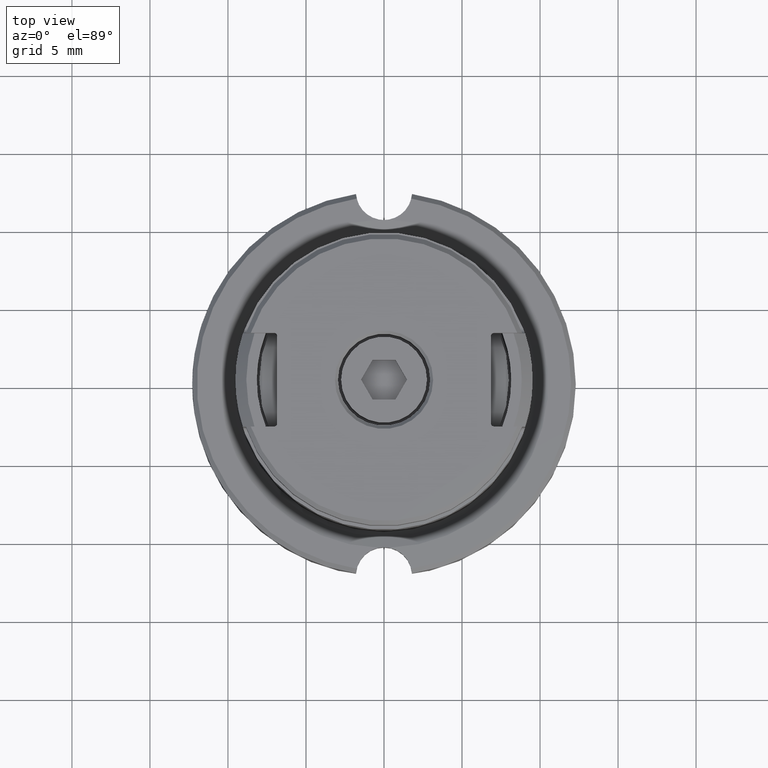
[diagram: clean part render]
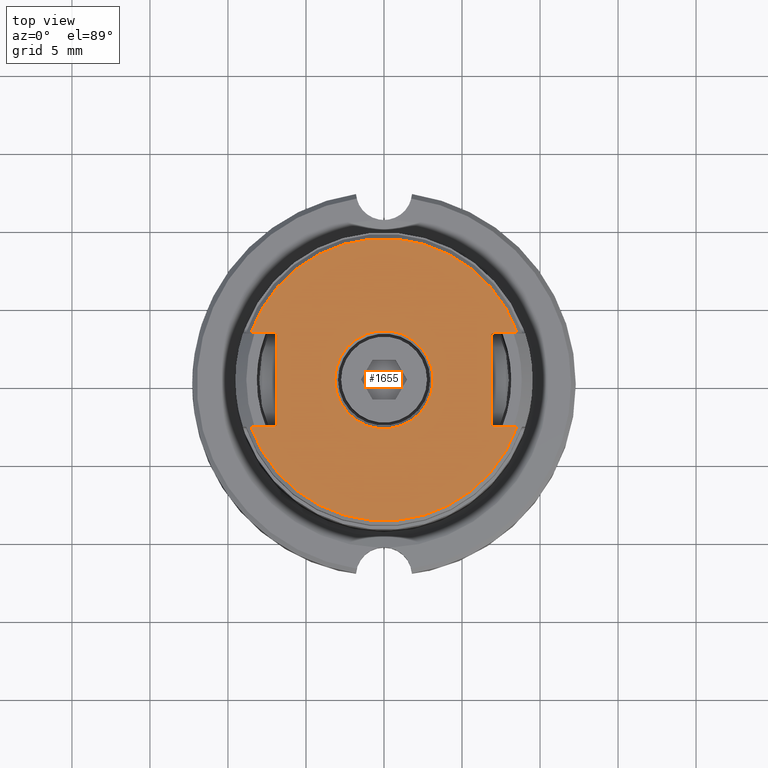
[diagram: same view with one face highlighted and labeled with its STEP entity id]
A machine part, top view. The second image highlights one B-rep face of the part: STEP entity #1655.
In plain terms, the highlighted planar face has unit normal (0, 0, 1).
Its self-contained STEP definition (entity closure, byte-faithful):
#1655=ADVANCED_FACE('',(#3096,#3097),#2452,.T.);
#2452=PLANE('',#18229);
#3096=FACE_BOUND('',#3334,.T.);
#3097=FACE_BOUND('',#3335,.T.);
#3334=EDGE_LOOP('',(#5425,#5426,#5427,#5428,#5429,#5430,#5431,#5432,#5433,
#5434,#5435,#5436));
#3335=EDGE_LOOP('',(#5437,#5438));
#4291=CIRCLE('',#18205,0.2);
#4292=CIRCLE('',#18208,0.2);
#4294=CIRCLE('',#18214,0.2);
#4295=CIRCLE('',#18217,0.2);
#4298=CIRCLE('',#18224,9.049999284139);
#4299=CIRCLE('',#18226,9.049999290481);
#4300=CIRCLE('',#18227,3.15);
#4301=CIRCLE('',#18228,3.15);
#5425=ORIENTED_EDGE('',*,*,#11744,.F.);
#5426=ORIENTED_EDGE('',*,*,#11742,.F.);
#5427=ORIENTED_EDGE('',*,*,#11772,.F.);
#5428=ORIENTED_EDGE('',*,*,#11766,.F.);
#5429=ORIENTED_EDGE('',*,*,#11764,.F.);
#5430=ORIENTED_EDGE('',*,*,#11762,.F.);
#5431=ORIENTED_EDGE('',*,*,#11760,.F.);
#5432=ORIENTED_EDGE('',*,*,#11758,.F.);
#5433=ORIENTED_EDGE('',*,*,#11773,.F.);
#5434=ORIENTED_EDGE('',*,*,#11750,.F.);
#5435=ORIENTED_EDGE('',*,*,#11748,.F.);
#5436=ORIENTED_EDGE('',*,*,#11746,.F.);
#5437=ORIENTED_EDGE('',*,*,#11774,.F.);
#5438=ORIENTED_EDGE('',*,*,#11775,.F.);
#9932=VERTEX_POINT('',#25028);
#9933=VERTEX_POINT('',#25030);
#9934=VERTEX_POINT('',#25034);
#9935=VERTEX_POINT('',#25038);
#9936=VERTEX_POINT('',#25042);
#9937=VERTEX_POINT('',#25046);
#9942=VERTEX_POINT('',#25080);
#9943=VERTEX_POINT('',#25082);
#9944=VERTEX_POINT('',#25086);
#9945=VERTEX_POINT('',#25090);
#9946=VERTEX_POINT('',#25094);
#9947=VERTEX_POINT('',#25098);
#9950=VERTEX_POINT('',#25123);
#9951=VERTEX_POINT('',#25124);
#11742=EDGE_CURVE('',#9932,#9933,#14076,.T.);
#11744=EDGE_CURVE('',#9933,#9934,#4291,.T.);
#11746=EDGE_CURVE('',#9934,#9935,#14079,.T.);
#11748=EDGE_CURVE('',#9935,#9936,#4292,.T.);
#11750=EDGE_CURVE('',#9936,#9937,#14082,.T.);
#11758=EDGE_CURVE('',#9942,#9943,#14085,.T.);
#11760=EDGE_CURVE('',#9943,#9944,#4294,.T.);
#11762=EDGE_CURVE('',#9944,#9945,#14088,.T.);
#11764=EDGE_CURVE('',#9945,#9946,#4295,.T.);
#11766=EDGE_CURVE('',#9946,#9947,#14091,.T.);
#11772=EDGE_CURVE('',#9947,#9932,#4298,.T.);
#11773=EDGE_CURVE('',#9937,#9942,#4299,.T.);
#11774=EDGE_CURVE('',#9950,#9951,#4300,.T.);
#11775=EDGE_CURVE('',#9951,#9950,#4301,.T.);
#14076=LINE('',#25029,#15919);
#14079=LINE('',#25037,#15922);
#14082=LINE('',#25045,#15925);
#14085=LINE('',#25081,#15928);
#14088=LINE('',#25089,#15931);
#14091=LINE('',#25097,#15934);
#15919=VECTOR('',#20296,1.);
#15922=VECTOR('',#20305,1.);
#15925=VECTOR('',#20314,1.);
#15928=VECTOR('',#20323,1.);
#15931=VECTOR('',#20332,1.);
#15934=VECTOR('',#20341,1.);
#18205=AXIS2_PLACEMENT_3D('',#25033,#20300,#20301);
#18208=AXIS2_PLACEMENT_3D('',#25041,#20309,#20310);
#18214=AXIS2_PLACEMENT_3D('',#25085,#20327,#20328);
#18217=AXIS2_PLACEMENT_3D('',#25093,#20336,#20337);
#18224=AXIS2_PLACEMENT_3D('',#25119,#20353,#20354);
#18226=AXIS2_PLACEMENT_3D('',#25121,#20357,#20358);
#18227=AXIS2_PLACEMENT_3D('',#25122,#20359,#20360);
#18228=AXIS2_PLACEMENT_3D('',#25125,#20361,#20362);
#18229=AXIS2_PLACEMENT_3D('',#25126,#20363,#20364);
#20296=DIRECTION('',(-0.999999999999993,7.54545381470395E-8,9.36094338090393E-8));
#20300=DIRECTION('',(0.,0.,1.));
#20301=DIRECTION('',(0.,1.,0.));
#20305=DIRECTION('',(0.,-1.,0.));
#20309=DIRECTION('',(0.,0.,1.));
#20310=DIRECTION('',(-0.999999999999998,0.,0.));
#20314=DIRECTION('',(0.999999999999997,4.83912678581499E-8,-5.30158290252699E-8));
#20323=DIRECTION('',(0.999999999999993,-7.47861361347495E-8,9.27796340615893E-8));
#20327=DIRECTION('',(0.,0.,1.));
#20328=DIRECTION('',(0.,-1.,0.));
#20332=DIRECTION('',(0.,1.,0.));
#20336=DIRECTION('',(0.,0.,1.));
#20337=DIRECTION('',(0.999999999999998,-1.0842021724855E-14,0.));
#20341=DIRECTION('',(-0.999999999999997,-4.88238096618099E-8,-5.34910661707499E-8));
#20353=DIRECTION('',(0.,0.,-1.));
#20354=DIRECTION('',(-0.943312437385987,0.331906079294895,0.));
#20357=DIRECTION('',(0.,0.,-1.));
#20358=DIRECTION('',(0.943312437392033,-0.331906079277711,0.));
#20359=DIRECTION('',(0.,0.,1.));
#20360=DIRECTION('',(1.,0.,0.));
#20361=DIRECTION('',(0.,0.,1.));
#20362=DIRECTION('',(-1.,0.,0.));
#20363=DIRECTION('',(0.,0.,1.));
#20364=DIRECTION('',(1.,0.,0.));
#25028=CARTESIAN_POINT('',(8.536977189386,3.003749881201,14.4999998608));
#25029=CARTESIAN_POINT('',(8.536977189386,3.003749881201,14.4999998608));
#25030=CARTESIAN_POINT('',(7.05,3.0037499934,14.5));
#25033=CARTESIAN_POINT('',(7.05,2.80375,14.5));
#25034=CARTESIAN_POINT('',(6.85,2.80375,14.5));
#25037=CARTESIAN_POINT('',(6.85,2.80375,14.5));
#25038=CARTESIAN_POINT('',(6.85,-2.80375,14.5));
#25041=CARTESIAN_POINT('',(7.05,-2.80375,14.5));
#25042=CARTESIAN_POINT('',(7.05,-3.00375,14.5));
#25045=CARTESIAN_POINT('',(7.05,-3.00375,14.5));
#25046=CARTESIAN_POINT('',(8.536977304257,-3.003749928043,14.49999992117));
#25080=CARTESIAN_POINT('',(-8.53697719271,-3.003749882253,14.49999986204));
#25081=CARTESIAN_POINT('',(-8.53697719271,-3.003749882253,14.49999986204));
#25082=CARTESIAN_POINT('',(-7.05,-3.003749993458,14.5));
#25085=CARTESIAN_POINT('',(-7.05,-2.80375,14.5));
#25086=CARTESIAN_POINT('',(-6.85,-2.80375,14.5));
#25089=CARTESIAN_POINT('',(-6.85,-2.80375,14.5));
#25090=CARTESIAN_POINT('',(-6.85,2.80375,14.5));
#25093=CARTESIAN_POINT('',(-7.05,2.80375,14.5));
#25094=CARTESIAN_POINT('',(-7.05,3.00375,14.5));
#25097=CARTESIAN_POINT('',(-7.05,3.00375,14.5));
#25098=CARTESIAN_POINT('',(-8.536977301933,3.0037499274,14.49999992046));
#25119=CARTESIAN_POINT('',(4.21884749358E-14,-1.554312234475E-14,14.5));
#25121=CARTESIAN_POINT('',(0.,-1.50990331349E-14,14.5));
#25122=CARTESIAN_POINT('',(0.,0.,14.5));
#25123=CARTESIAN_POINT('',(3.15,0.,14.5));
#25124=CARTESIAN_POINT('',(-3.15,0.,14.5));
#25125=CARTESIAN_POINT('',(0.,0.,14.5));
#25126=CARTESIAN_POINT('',(-1.001865257422E-12,-3.172352602832E-9,14.5));